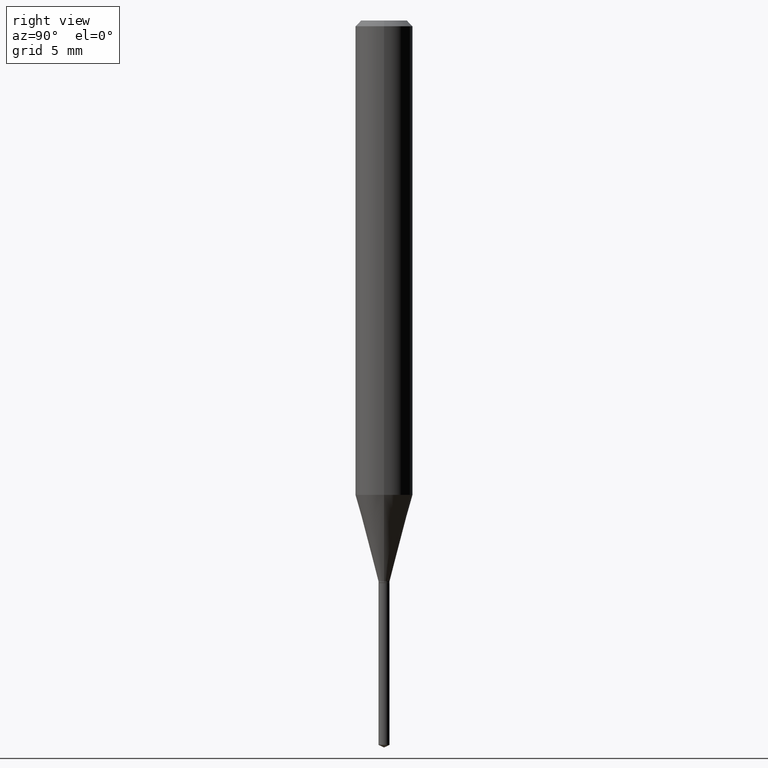
[diagram: clean part render]
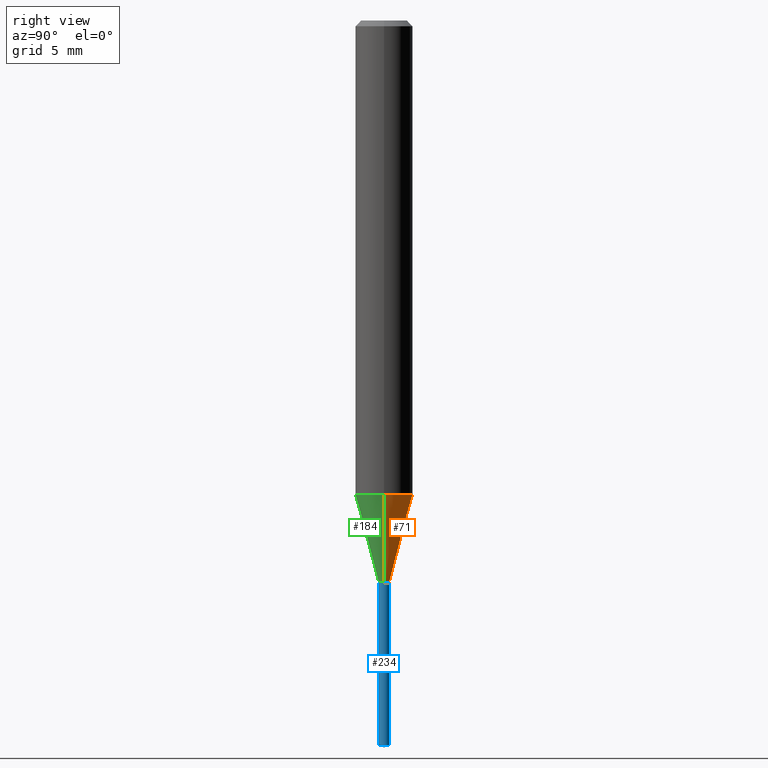
[diagram: same view with three faces highlighted in distinct colors, each labeled with its STEP entity id]
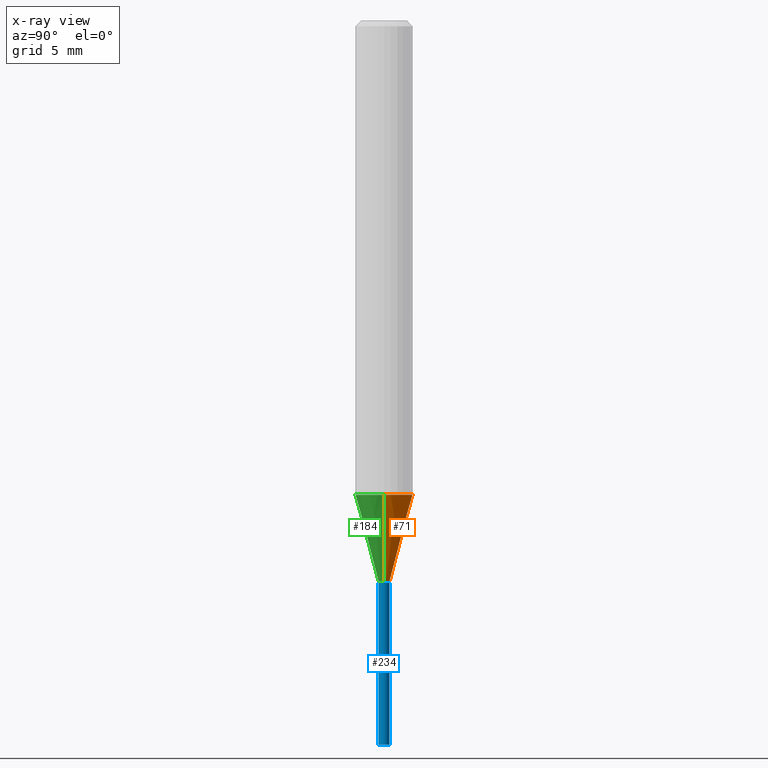
[diagram: x-ray of the same camera — body ghosted, the three highlighted faces saturated]
A machine part, right view with three faces highlighted in distinct colors.
The next image is the same camera in x-ray (body ghosted, the three faces saturated) — at least one of them is partly hidden behind the body in this view.
Their STEP definitions:

[orange] entity #71 — the highlighted conical surface has half-angle 15 deg.
#12 = EDGE_CURVE ( 'NONE', #470, #401, #247, .T. ) ;
#19 = CARTESIAN_POINT ( 'NONE',  ( 2.822315549218265928E-29, -4.029518613158873887E-15, -1.154099999999999904 ) ) ;
#69 = CIRCLE ( 'NONE', #361, 0.05905000000000013710 ) ;
#71 = ADVANCED_FACE ( 'NONE', ( #208 ), #354, .T. ) ;
#90 = EDGE_CURVE ( 'NONE', #127, #426, #69, .T. ) ;
#96 = EDGE_LOOP ( 'NONE', ( #163, #308, #118, #200 ) ) ;
#97 = DIRECTION ( 'NONE',  ( -0.2588190451025212391, 5.211531920934549464E-15, 0.9659258262890679791 ) ) ;
#99 = CARTESIAN_POINT ( 'NONE',  ( -0.05905000000000015098, -2.989045246693538813E-15, -0.9762677790193426963 ) ) ;
#118 = ORIENTED_EDGE ( 'NONE', *, *, #90, .F. ) ;
#126 = VECTOR ( 'NONE', #97, 39.37007874015748854 ) ;
#127 = VERTEX_POINT ( 'NONE', #451 ) ;
#130 = CARTESIAN_POINT ( 'NONE',  ( -0.01140000000000000041, -3.953579389223544676E-15, -1.154099999999999904 ) ) ;
#136 = DIRECTION ( 'NONE',  ( -2.445468806185136597E-29, 3.491481338843145583E-15, 1.000000000000000000 ) ) ;
#155 = CARTESIAN_POINT ( 'NONE',  ( 2.387432400075446825E-29, -3.408620732159878700E-15, -0.9762677790193426963 ) ) ;
#163 = ORIENTED_EDGE ( 'NONE', *, *, #12, .T. ) ;
#200 = ORIENTED_EDGE ( 'NONE', *, *, #404, .F. ) ;
#208 = FACE_OUTER_BOUND ( 'NONE', #96, .T. ) ;
#235 = AXIS2_PLACEMENT_3D ( 'NONE', #19, #453, #311 ) ;
#244 = CARTESIAN_POINT ( 'NONE',  ( 0.01140000000000000041, -4.109124387684497606E-15, -1.154099999999999904 ) ) ;
#247 = CIRCLE ( 'NONE', #289, 0.01140000000000000041 ) ;
#253 = DIRECTION ( 'NONE',  ( 1.000000000000000000, -6.982962677686272233E-15, 0.000000000000000000 ) ) ;
#283 = LINE ( 'NONE', #244, #425 ) ;
#289 = AXIS2_PLACEMENT_3D ( 'NONE', #478, #136, #253 ) ;
#306 = CARTESIAN_POINT ( 'NONE',  ( 0.01140000000000000041, -4.109124387684497606E-15, -1.154099999999999904 ) ) ;
#308 = ORIENTED_EDGE ( 'NONE', *, *, #316, .T. ) ;
#311 = DIRECTION ( 'NONE',  ( 1.000000000000000000, -6.982962677686272233E-15, 0.000000000000000000 ) ) ;
#316 = EDGE_CURVE ( 'NONE', #401, #426, #482, .T. ) ;
#340 = CARTESIAN_POINT ( 'NONE',  ( -0.01140000000000000041, -3.948516741282222710E-15, -1.154099999999999904 ) ) ;
#343 = DIRECTION ( 'NONE',  ( -2.445468806185136597E-29, 3.491481338843145583E-15, 1.000000000000000000 ) ) ;
#354 = CONICAL_SURFACE ( 'NONE', #235, 0.01140000000000000041, 0.2617993877991499629 ) ;
#361 = AXIS2_PLACEMENT_3D ( 'NONE', #155, #343, #447 ) ;
#366 = DIRECTION ( 'NONE',  ( 0.2588190451025212391, 1.565188264969622362E-15, 0.9659258262890679791 ) ) ;
#401 = VERTEX_POINT ( 'NONE', #130 ) ;
#404 = EDGE_CURVE ( 'NONE', #470, #127, #283, .T. ) ;
#425 = VECTOR ( 'NONE', #366, 39.37007874015748854 ) ;
#426 = VERTEX_POINT ( 'NONE', #99 ) ;
#447 = DIRECTION ( 'NONE',  ( 1.000000000000000000, -6.982962677686264344E-15, 0.000000000000000000 ) ) ;
#451 = CARTESIAN_POINT ( 'NONE',  ( 0.05905000000000015098, -3.820964678277253620E-15, -0.9762677790193426963 ) ) ;
#453 = DIRECTION ( 'NONE',  ( -2.445468806185136597E-29, 3.491481338843145583E-15, 1.000000000000000000 ) ) ;
#470 = VERTEX_POINT ( 'NONE', #306 ) ;
#478 = CARTESIAN_POINT ( 'NONE',  ( 2.822315549218265928E-29, -4.029518613158873887E-15, -1.154099999999999904 ) ) ;
#482 = LINE ( 'NONE', #340, #126 ) ;

[blue] entity #234 — the highlighted cylindrical surface (edge-blend (fillet) strip) has radius 0.2896 mm, axis along (-0, 0, 1).
#6 = CARTESIAN_POINT ( 'NONE',  ( 8.100187187668790892E-17, 0.01139999999999595851, -1.157499999999999973 ) ) ;
#15 = VERTEX_POINT ( 'NONE', #134 ) ;
#22 = VECTOR ( 'NONE', #330, 39.37007874015748143 ) ;
#25 = CARTESIAN_POINT ( 'NONE',  ( 8.100187187668787195E-17, 0.01139999999999479277, -1.490784092697033270 ) ) ;
#39 = VERTEX_POINT ( 'NONE', #25 ) ;
#53 = ORIENTED_EDGE ( 'NONE', *, *, #462, .F. ) ;
#63 = CARTESIAN_POINT ( 'NONE',  ( -7.960577452559512197E-17, -0.01140000000000404232, -1.157499999999999973 ) ) ;
#92 = VERTEX_POINT ( 'NONE', #6 ) ;
#112 = VECTOR ( 'NONE', #377, 39.37007874015748143 ) ;
#123 = ORIENTED_EDGE ( 'NONE', *, *, #266, .T. ) ;
#124 = EDGE_CURVE ( 'NONE', #39, #92, #154, .T. ) ;
#134 = CARTESIAN_POINT ( 'NONE',  ( -7.960577452559512197E-17, -0.01140000000000404232, -1.157499999999999973 ) ) ;
#138 = CIRCLE ( 'NONE', #474, 0.01140000000000000041 ) ;
#153 = DIRECTION ( 'NONE',  ( -2.445457056059012515E-29, 3.491498165692530705E-15, 1.000000000000000000 ) ) ;
#154 = LINE ( 'NONE', #221, #112 ) ;
#175 = DIRECTION ( 'NONE',  ( -2.445457056059012515E-29, 3.491498165692530705E-15, 1.000000000000000000 ) ) ;
#213 = FACE_OUTER_BOUND ( 'NONE', #464, .T. ) ;
#221 = CARTESIAN_POINT ( 'NONE',  ( 8.100187187667972449E-17, 0.01139999999999595851, -1.157499999999999973 ) ) ;
#229 = CIRCLE ( 'NONE', #334, 0.01140000000000000041 ) ;
#234 = ADVANCED_FACE ( 'NONE', ( #213 ), #341, .T. ) ;
#238 = ORIENTED_EDGE ( 'NONE', *, *, #313, .F. ) ;
#249 = ORIENTED_EDGE ( 'NONE', *, *, #124, .T. ) ;
#262 = DIRECTION ( 'NONE',  ( -2.445457056059012515E-29, 3.491498165692530705E-15, 1.000000000000000000 ) ) ;
#266 = EDGE_CURVE ( 'NONE', #370, #39, #229, .T. ) ;
#271 = CARTESIAN_POINT ( 'NONE',  ( -7.960577452558696219E-17, -0.01140000000000520632, -1.490784092697033270 ) ) ;
#296 = CARTESIAN_POINT ( 'NONE',  ( 2.830630143159295633E-29, -4.041389649710940900E-15, -1.157499999999999973 ) ) ;
#309 = CARTESIAN_POINT ( 'NONE',  ( 3.645662079317481238E-29, -5.205050448017132206E-15, -1.490784092697033270 ) ) ;
#313 = EDGE_CURVE ( 'NONE', #370, #15, #408, .T. ) ;
#330 = DIRECTION ( 'NONE',  ( -2.445457056059012515E-29, 3.491498165692530705E-15, 1.000000000000000000 ) ) ;
#332 = DIRECTION ( 'NONE',  ( -6.982962677686265922E-15, -1.000000000000000000, 0.000000000000000000 ) ) ;
#334 = AXIS2_PLACEMENT_3D ( 'NONE', #309, #175, #332 ) ;
#341 = CYLINDRICAL_SURFACE ( 'NONE', #431, 0.01140000000000000041 ) ;
#370 = VERTEX_POINT ( 'NONE', #271 ) ;
#374 = DIRECTION ( 'NONE',  ( -6.982962677686265922E-15, -1.000000000000000000, 0.000000000000000000 ) ) ;
#377 = DIRECTION ( 'NONE',  ( -2.445457056059012515E-29, 3.491498165692530705E-15, 1.000000000000000000 ) ) ;
#378 = CARTESIAN_POINT ( 'NONE',  ( 2.830630143159295633E-29, -4.041389649710940900E-15, -1.157499999999999973 ) ) ;
#408 = LINE ( 'NONE', #63, #22 ) ;
#411 = DIRECTION ( 'NONE',  ( -6.982962677686265922E-15, -1.000000000000000000, 0.000000000000000000 ) ) ;
#431 = AXIS2_PLACEMENT_3D ( 'NONE', #378, #262, #374 ) ;
#462 = EDGE_CURVE ( 'NONE', #15, #92, #138, .T. ) ;
#464 = EDGE_LOOP ( 'NONE', ( #123, #249, #53, #238 ) ) ;
#474 = AXIS2_PLACEMENT_3D ( 'NONE', #296, #153, #411 ) ;

[green] entity #184 — the highlighted conical surface has half-angle 15 deg.
#5 = DIRECTION ( 'NONE',  ( -2.445468806185136597E-29, 3.491481338843145583E-15, 1.000000000000000000 ) ) ;
#34 = CIRCLE ( 'NONE', #93, 0.05905000000000013710 ) ;
#36 = AXIS2_PLACEMENT_3D ( 'NONE', #307, #5, #68 ) ;
#38 = EDGE_CURVE ( 'NONE', #426, #127, #34, .T. ) ;
#59 = EDGE_CURVE ( 'NONE', #401, #470, #167, .T. ) ;
#62 = DIRECTION ( 'NONE',  ( -2.445468806185136597E-29, 3.491481338843145583E-15, 1.000000000000000000 ) ) ;
#68 = DIRECTION ( 'NONE',  ( 1.000000000000000000, -6.982962677686272233E-15, 0.000000000000000000 ) ) ;
#93 = AXIS2_PLACEMENT_3D ( 'NONE', #407, #62, #212 ) ;
#94 = CONICAL_SURFACE ( 'NONE', #36, 0.01140000000000000041, 0.2617993877991499629 ) ;
#97 = DIRECTION ( 'NONE',  ( -0.2588190451025212391, 5.211531920934549464E-15, 0.9659258262890679791 ) ) ;
#99 = CARTESIAN_POINT ( 'NONE',  ( -0.05905000000000015098, -2.989045246693538813E-15, -0.9762677790193426963 ) ) ;
#126 = VECTOR ( 'NONE', #97, 39.37007874015748854 ) ;
#127 = VERTEX_POINT ( 'NONE', #451 ) ;
#130 = CARTESIAN_POINT ( 'NONE',  ( -0.01140000000000000041, -3.953579389223544676E-15, -1.154099999999999904 ) ) ;
#137 = AXIS2_PLACEMENT_3D ( 'NONE', #335, #481, #441 ) ;
#150 = FACE_OUTER_BOUND ( 'NONE', #174, .T. ) ;
#167 = CIRCLE ( 'NONE', #137, 0.01140000000000000041 ) ;
#174 = EDGE_LOOP ( 'NONE', ( #240, #214, #438, #263 ) ) ;
#184 = ADVANCED_FACE ( 'NONE', ( #150 ), #94, .T. ) ;
#212 = DIRECTION ( 'NONE',  ( 1.000000000000000000, -6.982962677686264344E-15, 0.000000000000000000 ) ) ;
#214 = ORIENTED_EDGE ( 'NONE', *, *, #59, .T. ) ;
#240 = ORIENTED_EDGE ( 'NONE', *, *, #316, .F. ) ;
#244 = CARTESIAN_POINT ( 'NONE',  ( 0.01140000000000000041, -4.109124387684497606E-15, -1.154099999999999904 ) ) ;
#263 = ORIENTED_EDGE ( 'NONE', *, *, #38, .F. ) ;
#283 = LINE ( 'NONE', #244, #425 ) ;
#306 = CARTESIAN_POINT ( 'NONE',  ( 0.01140000000000000041, -4.109124387684497606E-15, -1.154099999999999904 ) ) ;
#307 = CARTESIAN_POINT ( 'NONE',  ( 2.822315549218265928E-29, -4.029518613158873887E-15, -1.154099999999999904 ) ) ;
#316 = EDGE_CURVE ( 'NONE', #401, #426, #482, .T. ) ;
#335 = CARTESIAN_POINT ( 'NONE',  ( 2.822315549218265928E-29, -4.029518613158873887E-15, -1.154099999999999904 ) ) ;
#340 = CARTESIAN_POINT ( 'NONE',  ( -0.01140000000000000041, -3.948516741282222710E-15, -1.154099999999999904 ) ) ;
#366 = DIRECTION ( 'NONE',  ( 0.2588190451025212391, 1.565188264969622362E-15, 0.9659258262890679791 ) ) ;
#401 = VERTEX_POINT ( 'NONE', #130 ) ;
#404 = EDGE_CURVE ( 'NONE', #470, #127, #283, .T. ) ;
#407 = CARTESIAN_POINT ( 'NONE',  ( 2.387432400075446825E-29, -3.408620732159878700E-15, -0.9762677790193426963 ) ) ;
#425 = VECTOR ( 'NONE', #366, 39.37007874015748854 ) ;
#426 = VERTEX_POINT ( 'NONE', #99 ) ;
#438 = ORIENTED_EDGE ( 'NONE', *, *, #404, .T. ) ;
#441 = DIRECTION ( 'NONE',  ( 1.000000000000000000, -6.982962677686272233E-15, 0.000000000000000000 ) ) ;
#451 = CARTESIAN_POINT ( 'NONE',  ( 0.05905000000000015098, -3.820964678277253620E-15, -0.9762677790193426963 ) ) ;
#470 = VERTEX_POINT ( 'NONE', #306 ) ;
#481 = DIRECTION ( 'NONE',  ( -2.445468806185136597E-29, 3.491481338843145583E-15, 1.000000000000000000 ) ) ;
#482 = LINE ( 'NONE', #340, #126 ) ;